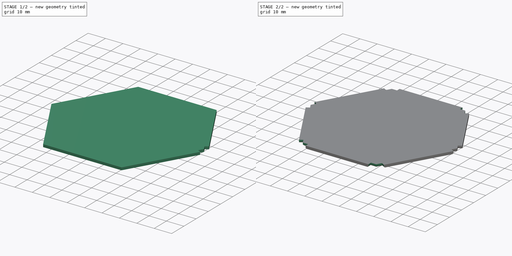
[diagram: build sequence overview — one tinted view per stage of 2, left to right]
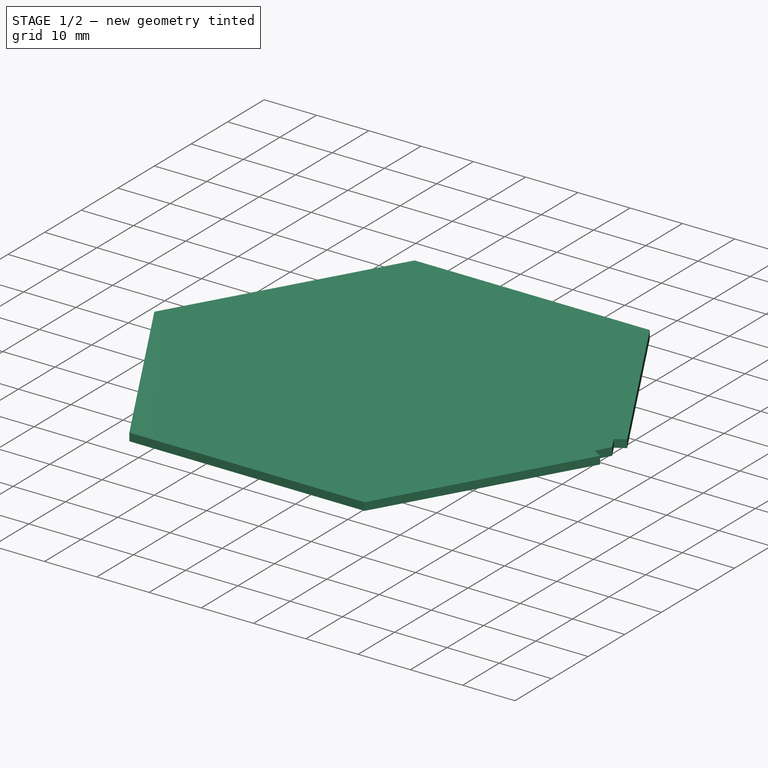
[diagram: stage 1 of 2 — iso view after this stage's code; geometry added in this stage tinted green]
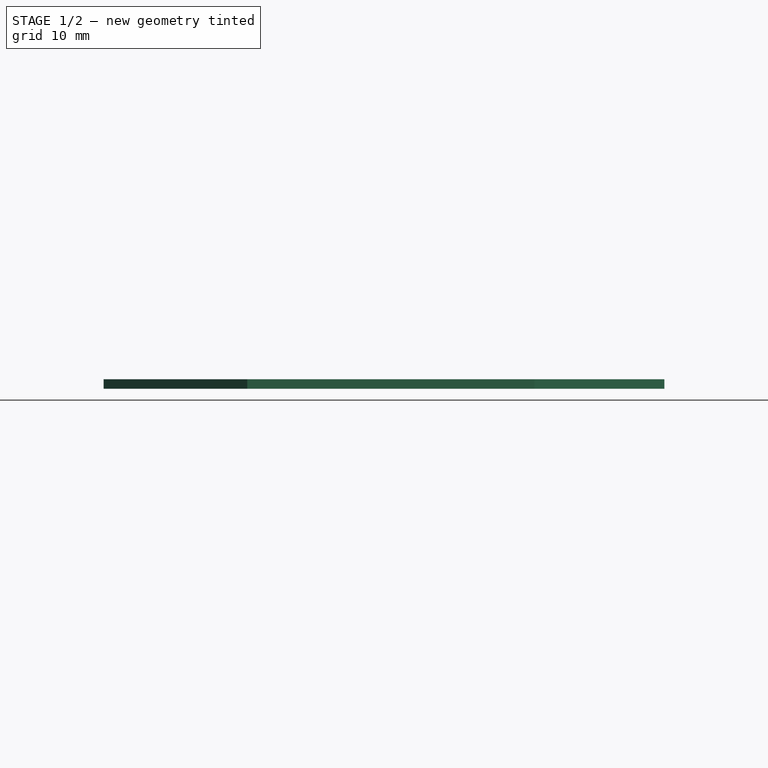
[diagram: stage 1 of 2 — front view after this stage's code; geometry added in this stage tinted green]
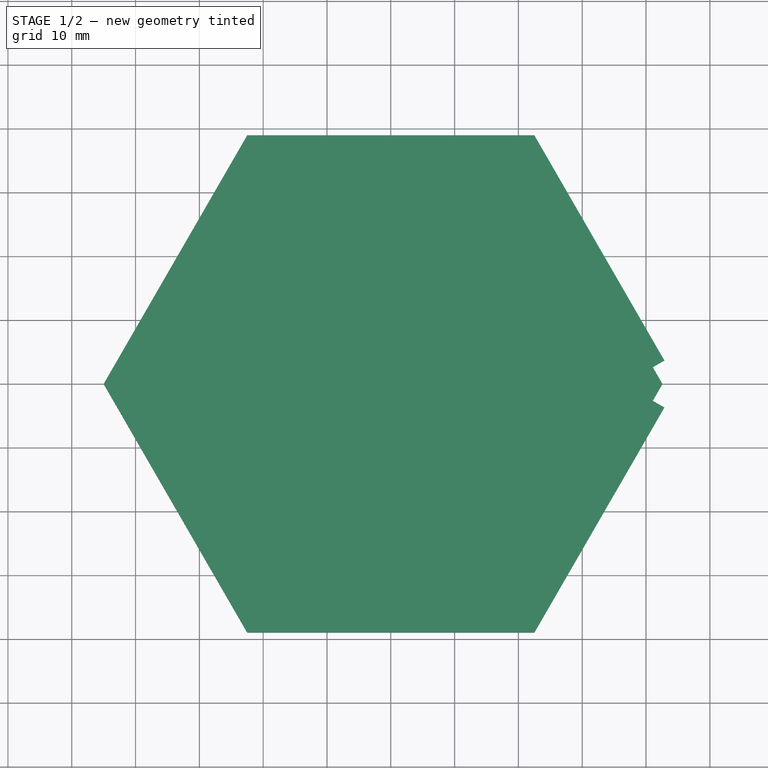
[diagram: stage 1 of 2 — top view after this stage's code; geometry added in this stage tinted green]
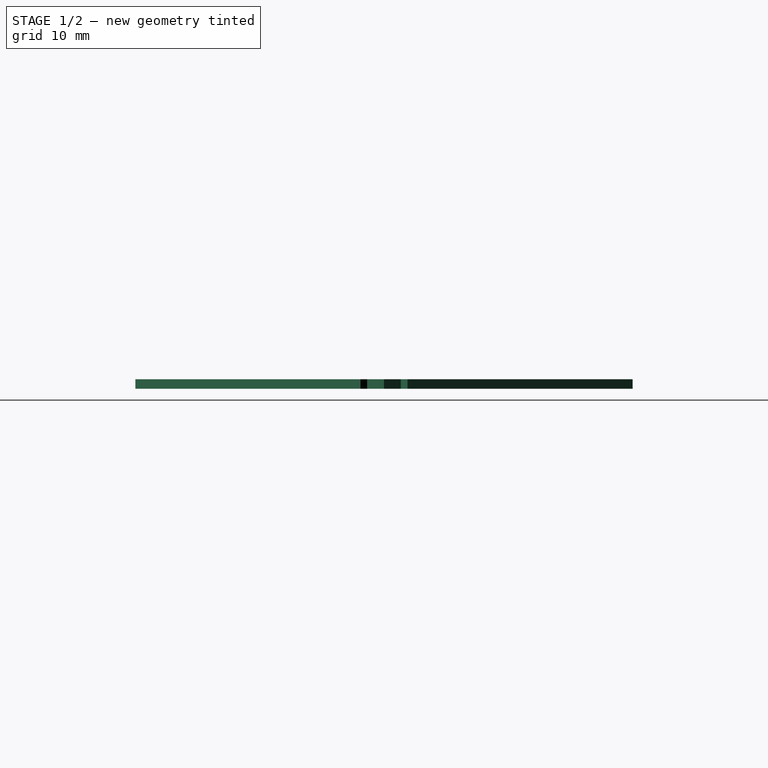
[diagram: stage 1 of 2 — right view after this stage's code; geometry added in this stage tinted green]
FCSTD DOCUMENT  (FreeCAD 1.0R39285 (Git))
Label: catan lid
License: All rights reserved
LicenseURL: https://en.wikipedia.org/wiki/All_rights_reserved
objects: Sketcher::SketchObject×3, PartDesign::Pad×1, PartDesign::Pocket×1, PartDesign::Chamfer×1, PartDesign::PolarPattern×1, PartDesign::Body×1
note: 18 computed .brp shape members not serialized (recipe doc carries the construction recipe); baked Part::Feature solids carry a one-line shape summary decoded from their .brp

FEATURE [Sketcher::SketchObject] Sketch  label="baseSketch"
  ArcFitTolerance = 1e-06
  AttachmentSupport = -> [XY_Plane]
  FullyConstrained = true
  MakeInternals = false
  MapMode = 5
  sketch-geometry (7):
    g0: LineSegment StartX=45 StartY=2.1e-15 StartZ=0 EndX=22.5 EndY=38.9711 EndZ=0
    g1: LineSegment StartX=22.5 StartY=38.9711 StartZ=0 EndX=-22.5 EndY=38.9711 EndZ=0
    g2: LineSegment StartX=-22.5 StartY=38.9711 StartZ=0 EndX=-45 EndY=8.3e-15 EndZ=0
    g3: LineSegment StartX=-45 StartY=8.3e-15 StartZ=0 EndX=-22.5 EndY=-38.9711 EndZ=0
    g4: LineSegment StartX=-22.5 StartY=-38.9711 StartZ=0 EndX=22.5 EndY=-38.9711 EndZ=0
    g5: LineSegment StartX=22.5 StartY=-38.9711 StartZ=0 EndX=45 EndY=2.1e-15 EndZ=0
    g6: Circle [constr] CenterX=0 CenterY=0 CenterZ=0 NormalX=0 NormalY=0 NormalZ=1 AngleXU=0 Radius=45
  constraints (16):
    c: Coincident(g0,g1)
    c: Coincident(g1,g2)
    c: Coincident(g2,g3)
    c: Coincident(g3,g4)
    c: Coincident(g4,g5)
    c: Coincident(g5,g0)
    c: Equal(g0, g1-g5) x5
    c: PointOnObject(g0,g6)
    c: PointOnObject(g1,g6)
    c: PointOnObject(g2,g6)
    c: PointOnObject(g3,g6)
    c: PointOnObject(g4,g6)
    c: PointOnObject(g5,g6)
    c: Radius(g6) = 45
    c: Coincident(g6,g-1)
    c: PointOnObject(g5,g-1)
FEATURE [PartDesign::Pad] Pad  label="basePad"
  Direction = (0,0,1)
  Length = 1.5
  Length2 = 10
  Profile = -> Sketch
  ReferenceAxis = -> Sketch [N_Axis]
  Refine = true
  Suppressed = false
  Type = 0
FEATURE [Sketcher::SketchObject] Sketch001  label="pillerSketch"
  ArcFitTolerance = 1e-06
  AttachmentSupport = -> [Pad]
  ExternalGeometry = -> [Pad]
  FullyConstrained = true
  MakeInternals = false
  MapMode = 5
  Placement = pos=(0,0,1.5) rot=(0,0,1;0rad)
  sketch-geometry (6):
    g0: LineSegment StartX=45 StartY=7e-16 StartZ=0 EndX=42.9226 EndY=3.59808 EndZ=0
    g1: LineSegment StartX=42.9226 StartY=3.59808 StartZ=0 EndX=41.1906 EndY=2.59808 EndZ=0
    g2: LineSegment StartX=41.1906 StartY=2.59808 StartZ=0 EndX=42.6906 EndY=2e-16 EndZ=0
    g3: LineSegment StartX=42.6906 StartY=2e-16 StartZ=0 EndX=41.1906 EndY=-2.59808 EndZ=0
    g4: LineSegment StartX=41.1906 StartY=-2.59808 StartZ=0 EndX=42.9226 EndY=-3.59808 EndZ=0
    g5: LineSegment StartX=42.9226 StartY=-3.59808 StartZ=0 EndX=45 EndY=7e-16 EndZ=0
  constraints (17):
    c: Coincident(g-4,g0)
    c: PointOnObject(g0,g-3)
    c: Coincident(g0,g1)
    c: Coincident(g1,g2)
    c: PointOnObject(g2,g-1)
    c: Coincident(g2,g3)
    c: Coincident(g3,g4)
    c: PointOnObject(g4,g-4)
    c: Coincident(g4,g5)
    c: Coincident(g5,g0)
    c: Perpendicular(g1,g0)
    c: Perpendicular(g2,g1)
    c: Perpendicular(g4,g3)
    c: Perpendicular(g5,g4)
    c: Equal(g0,g5)
    c: Distance(g2) = 3
    c: Distance(g1) = 2
FEATURE [Sketcher::SketchObject] Sketch002  label="PillerGroveSketch"
  ArcFitTolerance = 1e-06
  ExternalGeometry = -> [Sketch001]
  FullyConstrained = true
  MakeInternals = false
  MapMode = 5
  Placement = pos=(0,0,0) rot=(1,0,0;3.14159rad)
  sketch-geometry (8):
    g0: LineSegment [constr] StartX=41.1906 StartY=2.59808 StartZ=0 EndX=41.1406 EndY=2.68468 EndZ=0
    g1: LineSegment [constr] StartX=41.1406 StartY=2.68468 StartZ=0 EndX=41.054 EndY=2.63468 EndZ=0
    g2: LineSegment StartX=42.5751 StartY=0 StartZ=0 EndX=41.054 EndY=-2.63468 EndZ=0
    g3: LineSegment StartX=41.054 StartY=-2.63468 StartZ=0 EndX=42.8726 EndY=-3.68468 EndZ=0
    g4: LineSegment StartX=42.8726 StartY=-3.68468 StartZ=0 EndX=45 EndY=-9e-16 EndZ=0
    g5: LineSegment StartX=42.5751 StartY=0 StartZ=0 EndX=41.054 EndY=2.63468 EndZ=0
    g6: LineSegment StartX=41.054 StartY=2.63468 StartZ=0 EndX=42.8726 EndY=3.68468 EndZ=0
    g7: LineSegment StartX=42.8726 StartY=3.68468 StartZ=0 EndX=45 EndY=-1.1e-15 EndZ=0
  constraints (22):
    c: Coincident(g-5,g0)
    c: Coincident(g0,g1)
    c: Distance(g0) = 0.1
    c: Distance(g1) = 0.1
    c: Perpendicular(g0,g-4)
    c: Perpendicular(g1,g0)
    c: PointOnObject(g2,g-1)
    c: Coincident(g2,g3)
    c: Coincident(g3,g4)
    c: Parallel(g4,g-8)
    c: Parallel(g-7,g3)
    c: Parallel(g-6,g2)
    c: Coincident(g2,g5)
    c: Coincident(g5,g6)
    c: Coincident(g6,g7)
    c: Coincident(g7,g4)
    c: PointOnObject(g6,g-3)
    c: Perpendicular(g6,g7)
    c: Perpendicular(g5,g6)
    c: Equal(g7,g4)
    c: Coincident(g4,g-8)
    c: Coincident(g5,g1)
FEATURE [PartDesign::Pocket] Pocket  label="PillerGrovePocket"
  BaseFeature = -> Pad
  Direction = (0,0,1)
  Length = 1.5
  Length2 = 5
  Profile = -> Sketch002
  ReferenceAxis = -> Sketch002 [N_Axis]
  Refine = true
  Suppressed = false
  Type = 0
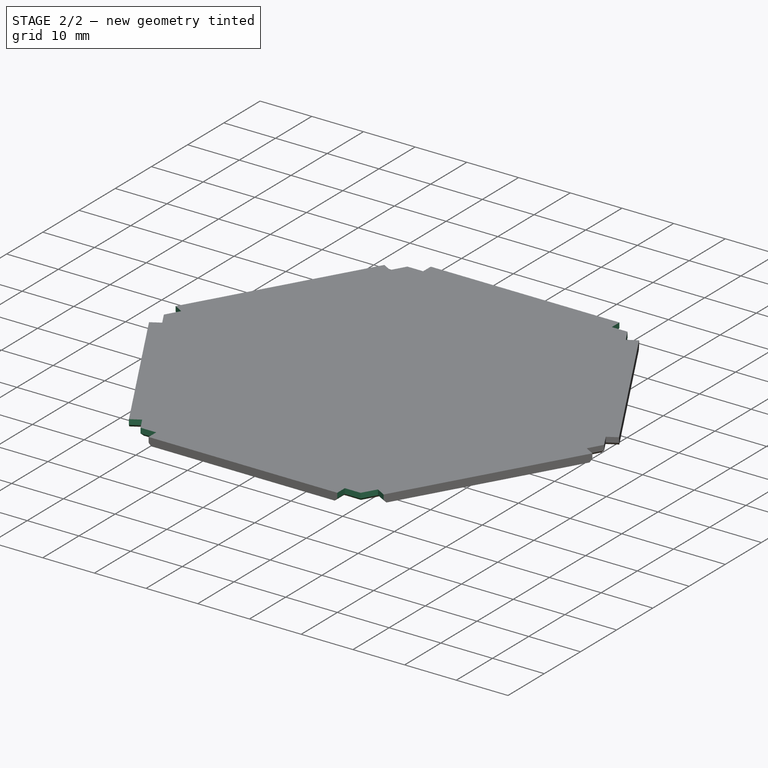
[diagram: stage 2 of 2 — iso view after this stage's code; geometry added in this stage tinted green]
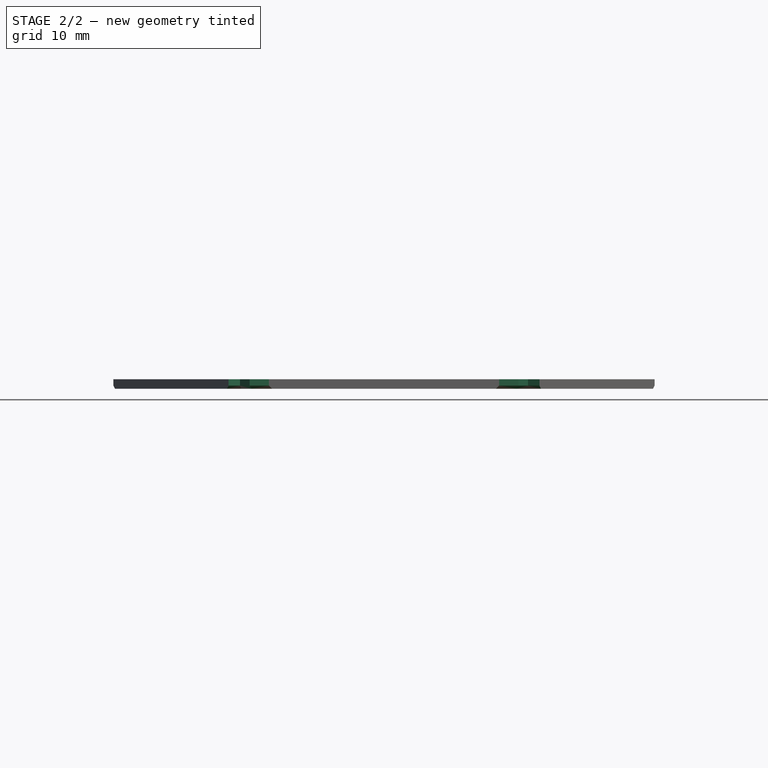
[diagram: stage 2 of 2 — front view after this stage's code; geometry added in this stage tinted green]
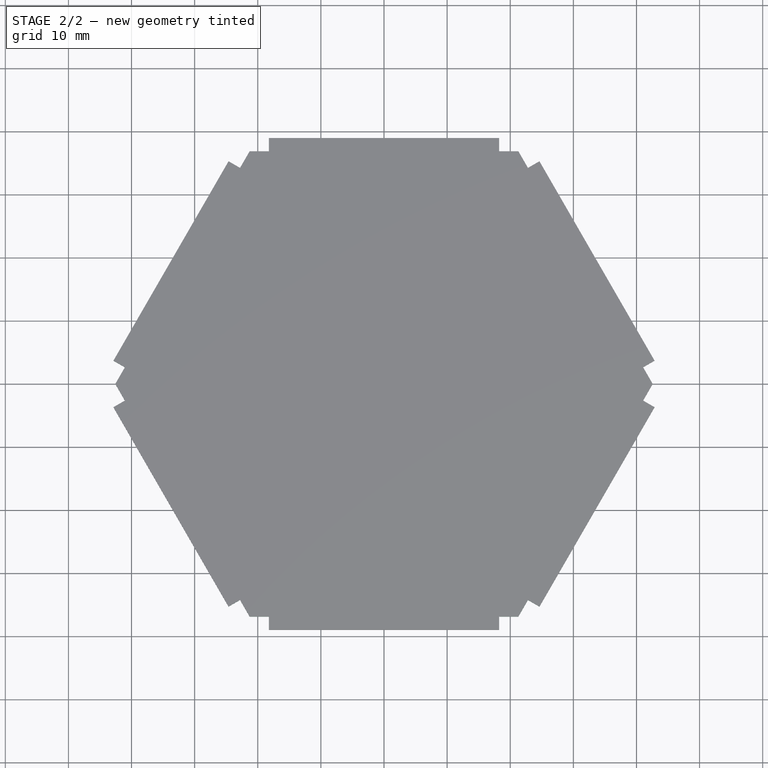
[diagram: stage 2 of 2 — top view after this stage's code; geometry added in this stage tinted green]
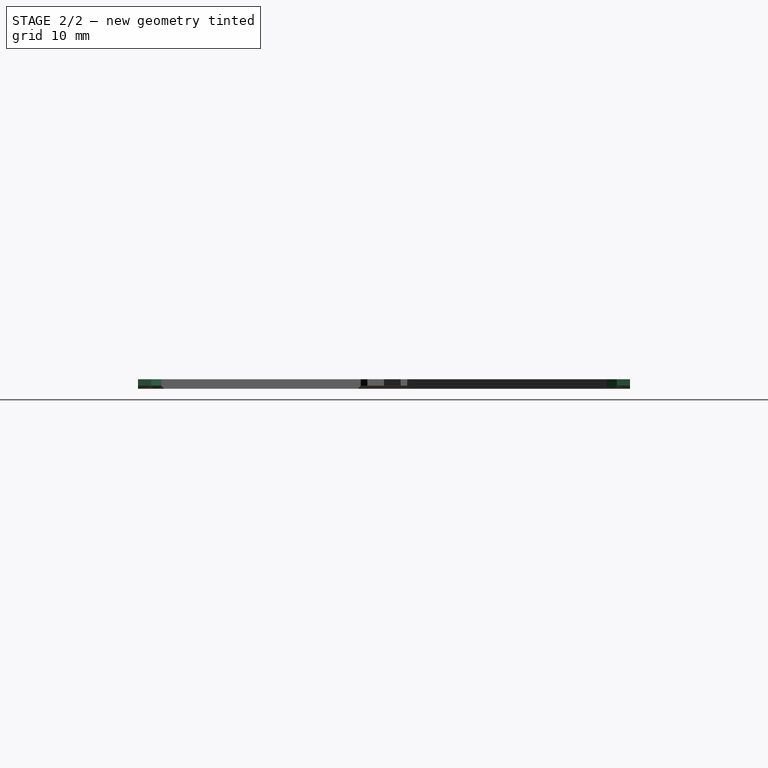
[diagram: stage 2 of 2 — right view after this stage's code; geometry added in this stage tinted green]
FEATURE [PartDesign::Chamfer] Chamfer  label="PillerGroveChamfer"
  Angle = 45
  Base = -> Pocket [Edge8,Edge7,Edge6,Edge5]
  BaseFeature = -> Pocket
  ChamferType = 0
  FlipDirection = false
  Refine = true
  Size = 0.5
  Size2 = 1
  SupportTransform = false
  Suppressed = false
  UseAllEdges = false
FEATURE [PartDesign::PolarPattern] PolarPattern  label="PillerAndGrovePolarPattern"
  Angle = 360
  Axis = -> Sketch002 [N_Axis]
  BaseFeature = -> Chamfer
  Mode = 0
  Occurrences = 6
  Offset = 120
  Originals = -> [Pocket,Chamfer]
  Refine = true
  Suppressed = false
  TransformMode = 0
FEATURE [PartDesign::Body] Body
  AllowCompound = false
  Group = -> [Sketch,Pad,Sketch001,Sketch002,Pocket,Chamfer,PolarPattern]
  Origin = -> Origin
  Tip = -> PolarPattern
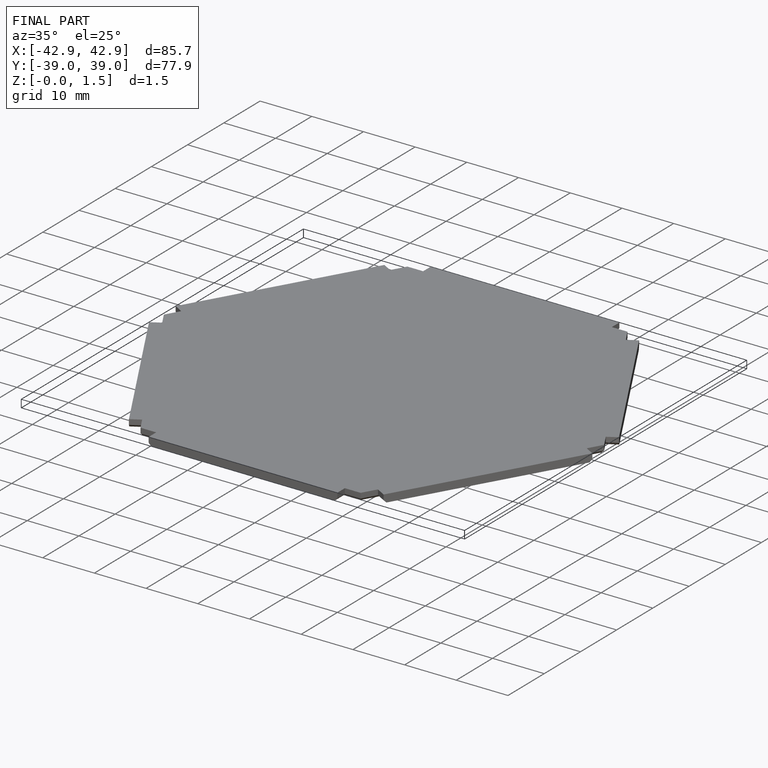
[diagram: finished part — iso view with bounding-box wireframe]
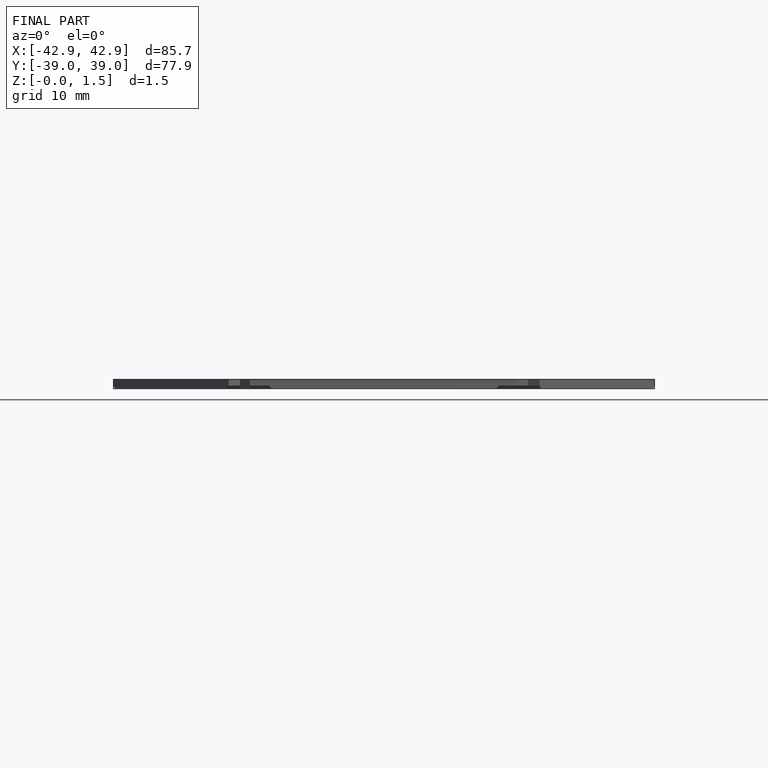
[diagram: finished part — front view with bounding-box wireframe]
